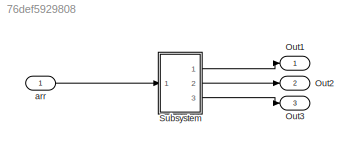
MODEL slx_76def5929808
KIND model
CONFIG AbsTol = auto
CONFIG EnableMultiTasking = off
CONFIG FixedStep = auto
CONFIG MaxStep = auto
CONFIG MinStep = auto
CONFIG RelTol = 1e-3
CONFIG SampleTimeConstraint = Unconstrained
CONFIG SolverName = FixedStepDiscrete
CONFIG StartTime = 0.0
CONFIG StopTime = 10.0
BLOCK [Outport] Out1
  SignalName = Avr_Out
BLOCK [Outport] Out2
  Port = 2
  SignalName = Max_Out
BLOCK [Outport] Out3
  Port = 3
  SignalName = Min_Out
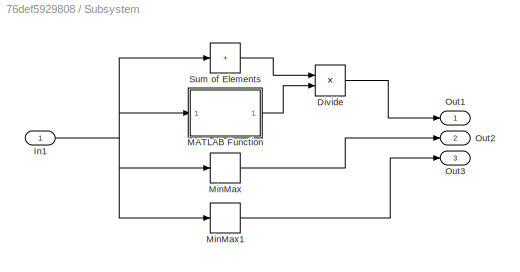
BLOCK [SubSystem] Subsystem
  Ports = [1, 3]
  RequestExecContextInheritance = off
  TreatAsAtomicUnit = on
BLOCK [Product] Subsystem/Divide
  Inputs = */
  Ports = [2, 1]
BLOCK [Inport] Subsystem/In1
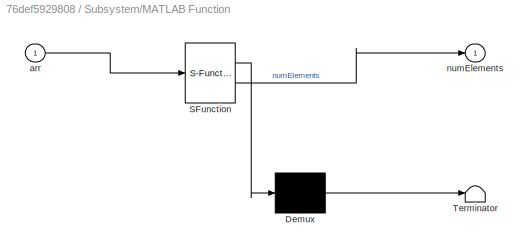
BLOCK [SubSystem] Subsystem/MATLAB Function
  ErrorFcn = Stateflow.Translate.translate
  PermitHierarchicalResolution = ExplicitOnly
  Ports = [1, 1]
  RequestExecContextInheritance = off
  SFBlockType = MATLAB Function
  TreatAsAtomicUnit = on
BLOCK [Demux] Subsystem/MATLAB Function/ Demux 
  Outputs = 1
  Ports = [1, 1]
BLOCK [S-Function] Subsystem/MATLAB Function/ SFunction 
  EnableBusSupport = on
  FunctionName = sf_sfun
  PortCounts = [1 2]
  Ports = [1, 2]
  SFcnIsStateOwnerBlock = off
  SFunctionDeploymentMode = off
  Tag = Stateflow S-Function 2
BLOCK [Terminator] Subsystem/MATLAB Function/ Terminator 
BLOCK [Inport] Subsystem/MATLAB Function/arr
BLOCK [Outport] Subsystem/MATLAB Function/numElements
BLOCK [MinMax] Subsystem/MinMax
  Function = max
  Ports = [1, 1]
BLOCK [MinMax] Subsystem/MinMax1
  Ports = [1, 1]
BLOCK [Outport] Subsystem/Out1
BLOCK [Outport] Subsystem/Out2
  Port = 2
BLOCK [Outport] Subsystem/Out3
  Port = 3
BLOCK [Sum] Subsystem/Sum of Elements
  IconShape = rectangular
  Inputs = +
  Ports = [1, 1]
BLOCK [Inport] arr
  PortDimensions = 10
LINE Subsystem/Divide:1 -> Subsystem/Out1:1
NET Subsystem/In1:1 -> Subsystem/MATLAB Function:1, Subsystem/MinMax1:1, Subsystem/MinMax:1, Subsystem/Sum of Elements:1
LINE Subsystem/MATLAB Function:1 -> Subsystem/Divide:2
LINE Subsystem/MinMax1:1 -> Subsystem/Out3:1
LINE Subsystem/MinMax:1 -> Subsystem/Out2:1
LINE Subsystem/Sum of Elements:1 -> Subsystem/Divide:1
LINE Subsystem:1 -> Out1:1
LINE Subsystem:2 -> Out2:1
LINE Subsystem:3 -> Out3:1
LINE arr:1 -> Subsystem:1
note: NET lines group one-source signal fan-out (src -> all destinations, sorted); 1:1 wires keep LINE
CHART Subsystem/MATLAB Function states=1 transitions=1
  STATE_LABEL 'eML_blk_kernel()'
  STATE_LABEL 'SCRIPT:\nfunction numElements = array_length(arr)\n    numElements = numel(arr);\nend'
CHART  states=0 transitions=0
